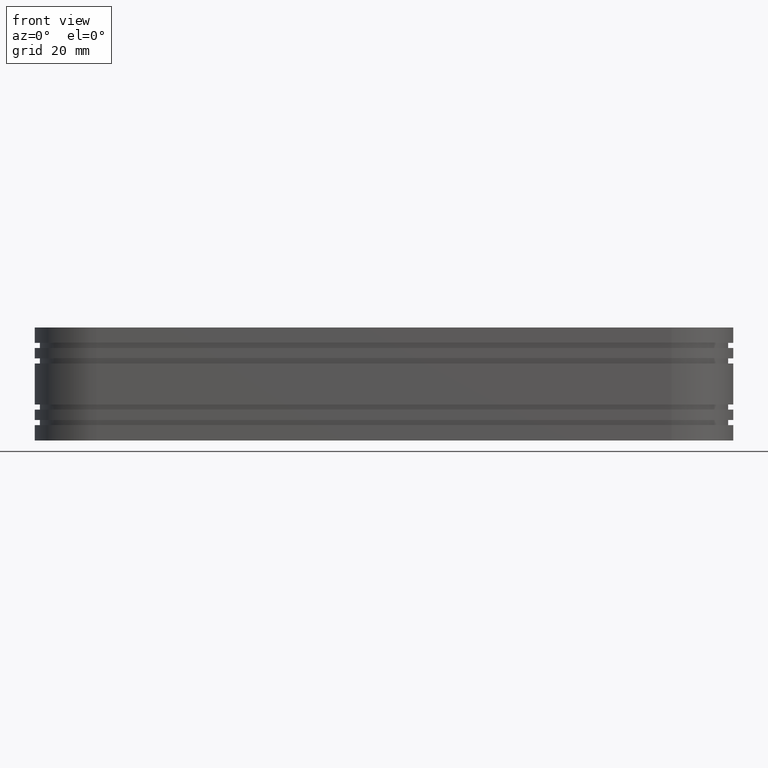
[diagram: clean part render]
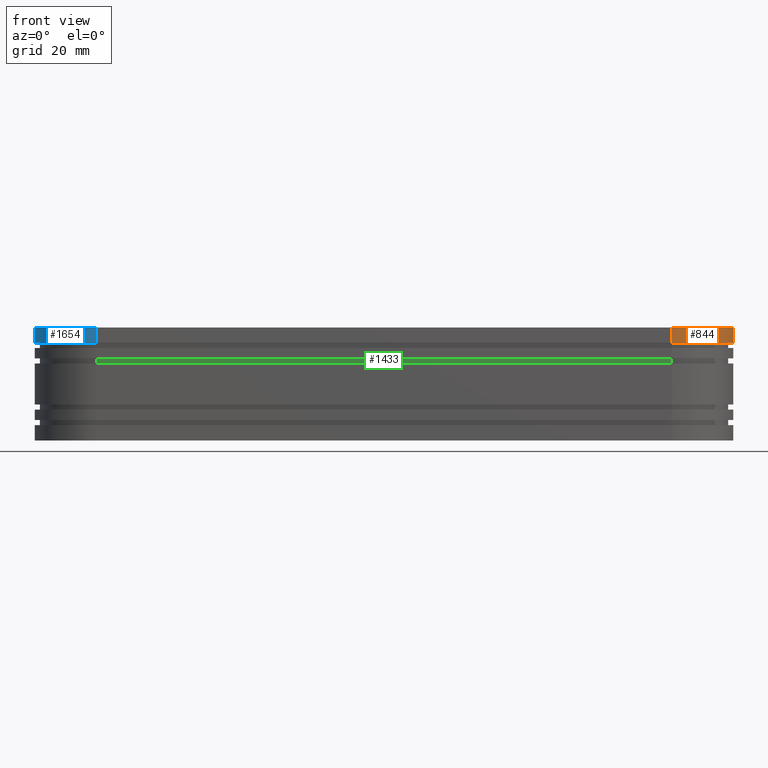
[diagram: same view with three faces highlighted in distinct colors, each labeled with its STEP entity id]
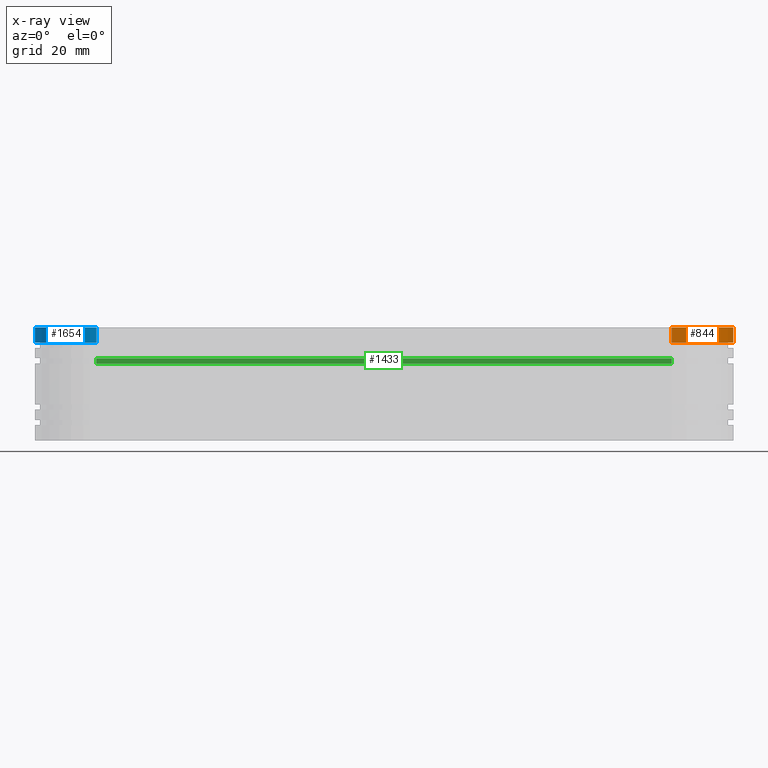
[diagram: x-ray of the same camera — body ghosted, the three highlighted faces saturated]
A machine part, front view with three faces highlighted in distinct colors.
The next image is the same camera in x-ray (body ghosted, the three faces saturated) — at least one of them is partly hidden behind the body in this view.
Their STEP definitions:

[orange] entity #844 — the highlighted face is a freeform B-spline surface patch.
#437=CARTESIAN_POINT('',(132.999900000000000,-24.0,11.0));
#438=VERTEX_POINT('',#437);
#446=CARTESIAN_POINT('',(132.999900000000000,-24.0,8.000000000000091));
#447=VERTEX_POINT('',#446);
#448=CARTESIAN_POINT('',(132.999900000000000,-24.0,8.000000000000091));
#449=CARTESIAN_POINT('',(132.999900000000000,-24.0,11.0));
#450=QUASI_UNIFORM_CURVE('',1,(#448,#449),.UNSPECIFIED.,.F.,.U.);
#451=EDGE_CURVE('',#447,#438,#450,.T.);
#792=CARTESIAN_POINT('',(132.995787899706700,-23.685876620305521,7.925000000000091));
#793=CARTESIAN_POINT('',(132.995787899706700,-23.685876620305521,11.076874999999999));
#794=CARTESIAN_POINT('',(133.341807121995120,-36.899817606656633,7.925000000000091));
#795=CARTESIAN_POINT('',(133.341807121995120,-36.899817606656633,11.076874999999998));
#796=CARTESIAN_POINT('',(120.156059092488230,-35.970293752569717,7.925000000000092));
#797=CARTESIAN_POINT('',(120.156059092488230,-35.970293752569717,11.076874999999999));
#805=(BOUNDED_SURFACE()B_SPLINE_SURFACE(1,2,((#792,#794,#796),(#793,#795,#797)),.UNSPECIFIED.,.F.,.F.,.U.)B_SPLINE_SURFACE_WITH_KNOTS((2,2),(3,3),(0.0,3.151874999999909),(0.0,21.253708129060328),.UNSPECIFIED.)GEOMETRIC_REPRESENTATION_ITEM()RATIONAL_B_SPLINE_SURFACE(((1.0,0.670944223154768,0.996392648609106),(1.0,0.670944223154768,0.996392648609106)))REPRESENTATION_ITEM('')SURFACE());
#806=CARTESIAN_POINT('',(120.999900000000000,-36.0,11.0));
#807=VERTEX_POINT('',#806);
#808=CARTESIAN_POINT('',(120.999900000000000,-36.000000000000007,11.0));
#809=CARTESIAN_POINT('',(132.999900000000000,-36.000000000000014,11.0));
#810=CARTESIAN_POINT('',(132.999900000000000,-24.0,11.0));
#818=(BOUNDED_CURVE()B_SPLINE_CURVE(2,(#808,#809,#810),.UNSPECIFIED.,.F.,.U.)CURVE()GEOMETRIC_REPRESENTATION_ITEM()QUASI_UNIFORM_CURVE()RATIONAL_B_SPLINE_CURVE((1.0,0.707106781186548,1.0))REPRESENTATION_ITEM(''));
#819=EDGE_CURVE('',#807,#438,#818,.T.);
#820=ORIENTED_EDGE('',*,*,#819,.F.);
#821=CARTESIAN_POINT('',(120.999900000000000,-36.0,8.000000000000091));
#822=VERTEX_POINT('',#821);
#823=CARTESIAN_POINT('',(120.999900000000000,-36.0,8.000000000000091));
#824=CARTESIAN_POINT('',(120.999900000000000,-36.0,11.0));
#825=QUASI_UNIFORM_CURVE('',1,(#823,#824),.UNSPECIFIED.,.F.,.U.);
#826=EDGE_CURVE('',#822,#807,#825,.T.);
#827=ORIENTED_EDGE('',*,*,#826,.F.);
#828=CARTESIAN_POINT('',(120.999900000000000,-36.000000000000007,8.000000000000091));
#829=CARTESIAN_POINT('',(132.999900000000000,-36.000000000000014,8.000000000000092));
#830=CARTESIAN_POINT('',(132.999900000000000,-24.0,8.000000000000091));
#838=(BOUNDED_CURVE()B_SPLINE_CURVE(2,(#828,#829,#830),.UNSPECIFIED.,.F.,.U.)CURVE()GEOMETRIC_REPRESENTATION_ITEM()QUASI_UNIFORM_CURVE()RATIONAL_B_SPLINE_CURVE((1.0,0.707106781186548,1.0))REPRESENTATION_ITEM(''));
#839=EDGE_CURVE('',#822,#447,#838,.T.);
#840=ORIENTED_EDGE('',*,*,#839,.T.);
#841=ORIENTED_EDGE('',*,*,#451,.T.);
#842=EDGE_LOOP('',(#820,#827,#840,#841));
#843=FACE_OUTER_BOUND('',#842,.T.);
#844=ADVANCED_FACE('',(#843),#805,.T.);

[blue] entity #1654 — the highlighted face is a freeform B-spline surface patch.
#1327=CARTESIAN_POINT('',(9.0,-36.0,11.0));
#1328=VERTEX_POINT('',#1327);
#1334=CARTESIAN_POINT('',(9.0,-36.0,8.000000000000091));
#1335=VERTEX_POINT('',#1334);
#1336=CARTESIAN_POINT('',(9.0,-36.0,8.000000000000091));
#1337=CARTESIAN_POINT('',(9.0,-36.0,11.0));
#1338=QUASI_UNIFORM_CURVE('',1,(#1336,#1337),.UNSPECIFIED.,.F.,.U.);
#1339=EDGE_CURVE('',#1335,#1328,#1338,.T.);
#1602=CARTESIAN_POINT('',(9.314123379694483,-35.995887899706688,7.925000000000091));
#1603=CARTESIAN_POINT('',(9.314123379694483,-35.995887899706688,11.076874999999999));
#1604=CARTESIAN_POINT('',(-3.899817606656645,-36.341907121995156,7.925000000000091));
#1605=CARTESIAN_POINT('',(-3.899817606656645,-36.341907121995156,11.076874999999998));
#1606=CARTESIAN_POINT('',(-2.970293752569721,-23.156159092488192,7.925000000000092));
#1607=CARTESIAN_POINT('',(-2.970293752569721,-23.156159092488192,11.076874999999999));
#1615=(BOUNDED_SURFACE()B_SPLINE_SURFACE(1,2,((#1602,#1604,#1606),(#1603,#1605,#1607)),.UNSPECIFIED.,.F.,.F.,.U.)B_SPLINE_SURFACE_WITH_KNOTS((2,2),(3,3),(0.0,3.151874999999909),(0.0,21.253708129060360),.UNSPECIFIED.)GEOMETRIC_REPRESENTATION_ITEM()RATIONAL_B_SPLINE_SURFACE(((1.0,0.670944223154768,0.996392648609106),(1.0,0.670944223154768,0.996392648609106)))REPRESENTATION_ITEM('')SURFACE());
#1616=CARTESIAN_POINT('',(-3.0,-24.0,11.0));
#1617=VERTEX_POINT('',#1616);
#1618=CARTESIAN_POINT('',(-3.000000000000001,-24.0,11.0));
#1619=CARTESIAN_POINT('',(-3.0,-36.000000000000014,11.0));
#1620=CARTESIAN_POINT('',(9.0,-36.000000000000007,11.0));
#1628=(BOUNDED_CURVE()B_SPLINE_CURVE(2,(#1618,#1619,#1620),.UNSPECIFIED.,.F.,.U.)CURVE()GEOMETRIC_REPRESENTATION_ITEM()QUASI_UNIFORM_CURVE()RATIONAL_B_SPLINE_CURVE((1.0,0.707106781186548,1.0))REPRESENTATION_ITEM(''));
#1629=EDGE_CURVE('',#1617,#1328,#1628,.T.);
#1630=ORIENTED_EDGE('',*,*,#1629,.F.);
#1631=CARTESIAN_POINT('',(-3.0,-24.0,8.000000000000091));
#1632=VERTEX_POINT('',#1631);
#1633=CARTESIAN_POINT('',(-3.0,-24.0,8.000000000000091));
#1634=CARTESIAN_POINT('',(-3.0,-24.0,11.0));
#1635=QUASI_UNIFORM_CURVE('',1,(#1633,#1634),.UNSPECIFIED.,.F.,.U.);
#1636=EDGE_CURVE('',#1632,#1617,#1635,.T.);
#1637=ORIENTED_EDGE('',*,*,#1636,.F.);
#1638=CARTESIAN_POINT('',(-3.000000000000001,-24.0,8.000000000000091));
#1639=CARTESIAN_POINT('',(-3.0,-36.000000000000014,8.000000000000092));
#1640=CARTESIAN_POINT('',(9.0,-36.000000000000007,8.000000000000091));
#1648=(BOUNDED_CURVE()B_SPLINE_CURVE(2,(#1638,#1639,#1640),.UNSPECIFIED.,.F.,.U.)CURVE()GEOMETRIC_REPRESENTATION_ITEM()QUASI_UNIFORM_CURVE()RATIONAL_B_SPLINE_CURVE((1.0,0.707106781186548,1.0))REPRESENTATION_ITEM(''));
#1649=EDGE_CURVE('',#1632,#1335,#1648,.T.);
#1650=ORIENTED_EDGE('',*,*,#1649,.T.);
#1651=ORIENTED_EDGE('',*,*,#1339,.T.);
#1652=EDGE_LOOP('',(#1630,#1637,#1650,#1651));
#1653=FACE_OUTER_BOUND('',#1652,.T.);
#1654=ADVANCED_FACE('',(#1653),#1615,.T.);

[green] entity #1433 — the highlighted face is a freeform B-spline surface patch.
#965=CARTESIAN_POINT('',(120.999900000000000,-35.0,5.0));
#966=VERTEX_POINT('',#965);
#980=CARTESIAN_POINT('',(120.999900000000000,-35.0,4.000000000000085));
#981=VERTEX_POINT('',#980);
#982=CARTESIAN_POINT('',(120.999900000000000,-35.0,4.000000000000085));
#983=CARTESIAN_POINT('',(120.999900000000000,-35.0,5.0));
#984=QUASI_UNIFORM_CURVE('',1,(#982,#983),.UNSPECIFIED.,.F.,.U.);
#985=EDGE_CURVE('',#981,#966,#984,.T.);
#1406=CARTESIAN_POINT('',(3.405605212077551,-35.0,3.950050001938283));
#1407=CARTESIAN_POINT('',(3.405605212077551,-35.0,5.049950024883892));
#1408=CARTESIAN_POINT('',(126.594297791993900,-35.0,3.950050001938283));
#1409=CARTESIAN_POINT('',(126.594297791993900,-35.0,5.049950024883892));
#1410=B_SPLINE_SURFACE_WITH_KNOTS('',1,1,((#1406,#1408),(#1407,#1409)),.UNSPECIFIED.,.F.,.F.,.U.,(2,2),(2,2),(0.041708334948495,0.958291687403247),(0.0,123.188692579916310),.UNSPECIFIED.);
#1411=CARTESIAN_POINT('',(9.0,-35.0,5.0));
#1412=VERTEX_POINT('',#1411);
#1413=CARTESIAN_POINT('',(9.0,-35.0,5.0));
#1414=CARTESIAN_POINT('',(120.999900000000000,-35.0,5.0));
#1415=QUASI_UNIFORM_CURVE('',1,(#1413,#1414),.UNSPECIFIED.,.F.,.U.);
#1416=EDGE_CURVE('',#1412,#966,#1415,.T.);
#1417=ORIENTED_EDGE('',*,*,#1416,.F.);
#1418=CARTESIAN_POINT('',(9.0,-35.0,4.000000000000085));
#1419=VERTEX_POINT('',#1418);
#1420=CARTESIAN_POINT('',(9.0,-35.0,4.000000000000085));
#1421=CARTESIAN_POINT('',(9.0,-35.0,5.0));
#1422=QUASI_UNIFORM_CURVE('',1,(#1420,#1421),.UNSPECIFIED.,.F.,.U.);
#1423=EDGE_CURVE('',#1419,#1412,#1422,.T.);
#1424=ORIENTED_EDGE('',*,*,#1423,.F.);
#1425=CARTESIAN_POINT('',(9.0,-35.0,4.000000000000085));
#1426=CARTESIAN_POINT('',(120.999900000000000,-35.0,4.000000000000085));
#1427=QUASI_UNIFORM_CURVE('',1,(#1425,#1426),.UNSPECIFIED.,.F.,.U.);
#1428=EDGE_CURVE('',#1419,#981,#1427,.T.);
#1429=ORIENTED_EDGE('',*,*,#1428,.T.);
#1430=ORIENTED_EDGE('',*,*,#985,.T.);
#1431=EDGE_LOOP('',(#1417,#1424,#1429,#1430));
#1432=FACE_OUTER_BOUND('',#1431,.T.);
#1433=ADVANCED_FACE('',(#1432),#1410,.F.);